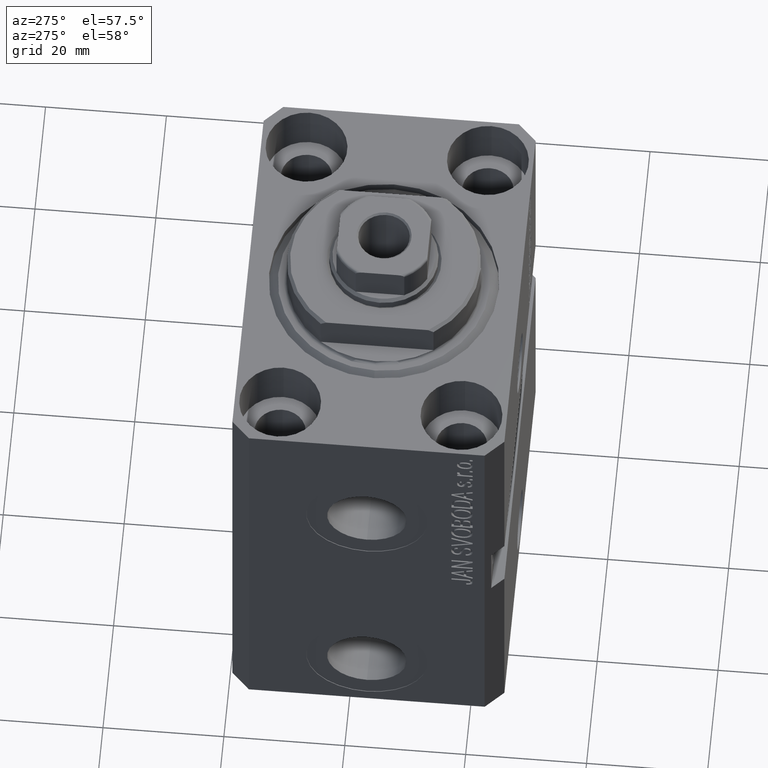
[diagram: clean part render]
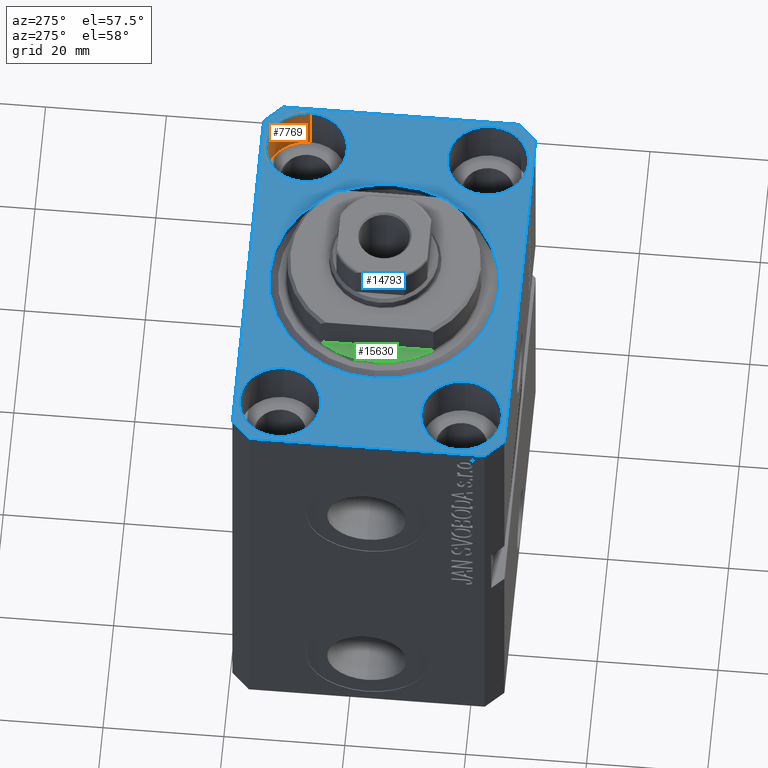
[diagram: same view with three faces highlighted in distinct colors, each labeled with its STEP entity id]
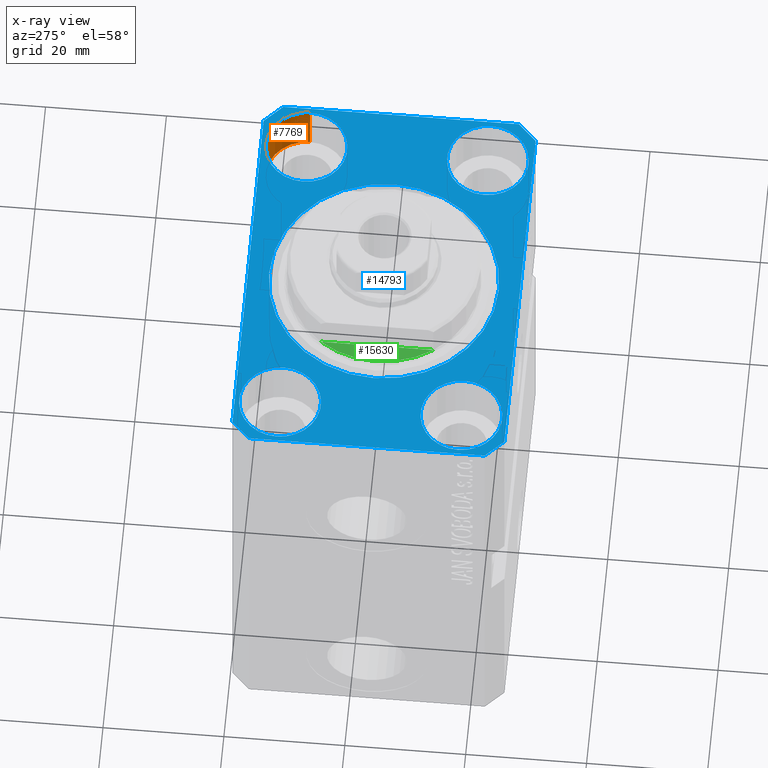
[diagram: x-ray of the same camera — body ghosted, the three highlighted faces saturated]
A machine part, auxiliary view with three faces highlighted in distinct colors.
The next image is the same camera in x-ray (body ghosted, the three faces saturated) — at least one of them is partly hidden behind the body in this view.
Their STEP definitions:

[orange] entity #7769 — the highlighted cylindrical surface (partial cylindrical patch) has radius 6.75 mm, axis along (0, 0, 1).
#1448 = CARTESIAN_POINT ( 'NONE',  ( 24.99999999999999645, 15.00000000000000888, -9.000000000000000000 ) ) ;
#1589 = CARTESIAN_POINT ( 'NONE',  ( 24.99999999999999645, 15.00000000000000888, 0.000000000000000000 ) ) ;
#5702 = CYLINDRICAL_SURFACE ( 'NONE', #31369, 6.749999999958452790 ) ;
#7471 = EDGE_CURVE ( 'NONE', #20193, #7764, #35274, .T. ) ;
#7764 = VERTEX_POINT ( 'NONE', #8868 ) ;
#7769 = ADVANCED_FACE ( 'NONE', ( #25702 ), #5702, .F. ) ;
#8868 = CARTESIAN_POINT ( 'NONE',  ( 31.74999999995845101, 15.00000000000000888, 0.000000000000000000 ) ) ;
#8992 = ORIENTED_EDGE ( 'NONE', *, *, #7471, .T. ) ;
#9295 = AXIS2_PLACEMENT_3D ( 'NONE', #35532, #11724, #28544 ) ;
#10465 = CARTESIAN_POINT ( 'NONE',  ( 18.25000000004154543, 15.00000000000000888, 0.000000000000000000 ) ) ;
#11724 = DIRECTION ( 'NONE',  ( 0.000000000000000000, 0.000000000000000000, 1.000000000000000000 ) ) ;
#12130 = CARTESIAN_POINT ( 'NONE',  ( 31.74999999995845101, 15.00000000000000888, -9.000000000000000000 ) ) ;
#14065 = CARTESIAN_POINT ( 'NONE',  ( 18.25000000004154543, 15.00000000000000888, -9.000000000000000000 ) ) ;
#14867 = VECTOR ( 'NONE', #32557, 1000.000000000000000 ) ;
#15160 = DIRECTION ( 'NONE',  ( -0.000000000000000000, -0.000000000000000000, 1.000000000000000000 ) ) ;
#15304 = DIRECTION ( 'NONE',  ( 0.000000000000000000, 0.000000000000000000, 1.000000000000000000 ) ) ;
#17212 = EDGE_CURVE ( 'NONE', #20193, #43143, #20058, .T. ) ;
#18714 = ORIENTED_EDGE ( 'NONE', *, *, #27948, .F. ) ;
#20058 = CIRCLE ( 'NONE', #9295, 6.749999999958452790 ) ;
#20193 = VERTEX_POINT ( 'NONE', #32986 ) ;
#21295 = AXIS2_PLACEMENT_3D ( 'NONE', #1589, #15304, #24738 ) ;
#24738 = DIRECTION ( 'NONE',  ( 1.000000000000000000, 0.000000000000000000, 0.000000000000000000 ) ) ;
#25702 = FACE_OUTER_BOUND ( 'NONE', #26108, .T. ) ;
#25903 = CARTESIAN_POINT ( 'NONE',  ( 18.25000000004154543, 15.00000000000000888, -9.000000000000000000 ) ) ;
#26108 = EDGE_LOOP ( 'NONE', ( #18714, #38473, #8992, #28765 ) ) ;
#27948 = EDGE_CURVE ( 'NONE', #43143, #35295, #42520, .T. ) ;
#28544 = DIRECTION ( 'NONE',  ( 1.000000000000000000, 0.000000000000000000, 0.000000000000000000 ) ) ;
#28765 = ORIENTED_EDGE ( 'NONE', *, *, #40222, .T. ) ;
#31369 = AXIS2_PLACEMENT_3D ( 'NONE', #1448, #15160, #39401 ) ;
#32035 = CIRCLE ( 'NONE', #21295, 6.749999999958452790 ) ;
#32557 = DIRECTION ( 'NONE',  ( -0.000000000000000000, -0.000000000000000000, 1.000000000000000000 ) ) ;
#32986 = CARTESIAN_POINT ( 'NONE',  ( 31.74999999995845101, 15.00000000000000888, -9.000000000000000000 ) ) ;
#35274 = LINE ( 'NONE', #12130, #14867 ) ;
#35295 = VERTEX_POINT ( 'NONE', #10465 ) ;
#35532 = CARTESIAN_POINT ( 'NONE',  ( 24.99999999999999645, 15.00000000000000888, -9.000000000000000000 ) ) ;
#36021 = DIRECTION ( 'NONE',  ( -0.000000000000000000, -0.000000000000000000, 1.000000000000000000 ) ) ;
#38473 = ORIENTED_EDGE ( 'NONE', *, *, #17212, .F. ) ;
#39401 = DIRECTION ( 'NONE',  ( 1.000000000000000000, 0.000000000000000000, 0.000000000000000000 ) ) ;
#40222 = EDGE_CURVE ( 'NONE', #7764, #35295, #32035, .T. ) ;
#41806 = VECTOR ( 'NONE', #36021, 1000.000000000000000 ) ;
#42520 = LINE ( 'NONE', #25903, #41806 ) ;
#43143 = VERTEX_POINT ( 'NONE', #14065 ) ;

[blue] entity #14793 — the highlighted planar face has unit normal (0, 0, 1).
#127 = CARTESIAN_POINT ( 'NONE',  ( -25.00000000000000355, 15.00000000000000000, 0.000000000000000000 ) ) ;
#128 = LINE ( 'NONE', #30682, #18479 ) ;
#613 = ORIENTED_EDGE ( 'NONE', *, *, #27193, .F. ) ;
#700 = VERTEX_POINT ( 'NONE', #14378 ) ;
#846 = ORIENTED_EDGE ( 'NONE', *, *, #14800, .F. ) ;
#990 = LINE ( 'NONE', #4369, #42326 ) ;
#1238 = ORIENTED_EDGE ( 'NONE', *, *, #2797, .T. ) ;
#1589 = CARTESIAN_POINT ( 'NONE',  ( 24.99999999999999645, 15.00000000000000888, 0.000000000000000000 ) ) ;
#1730 = EDGE_CURVE ( 'NONE', #25437, #42172, #38739, .T. ) ;
#2021 = VERTEX_POINT ( 'NONE', #10753 ) ;
#2712 = CARTESIAN_POINT ( 'NONE',  ( 29.49999999999707967, 22.49999999999951328, 0.000000000000000000 ) ) ;
#2761 = CIRCLE ( 'NONE', #40062, 19.00000000000000000 ) ;
#2797 = EDGE_CURVE ( 'NONE', #2021, #33019, #12402, .T. ) ;
#3010 = AXIS2_PLACEMENT_3D ( 'NONE', #37119, #6340, #16890 ) ;
#3330 = CIRCLE ( 'NONE', #20553, 6.749999999977465137 ) ;
#3973 = CIRCLE ( 'NONE', #14012, 6.750000000041541881 ) ;
#3984 = ORIENTED_EDGE ( 'NONE', *, *, #40787, .F. ) ;
#4119 = CARTESIAN_POINT ( 'NONE',  ( -31.75000000004154899, -15.00000000000000000, 0.000000000000000000 ) ) ;
#4369 = CARTESIAN_POINT ( 'NONE',  ( 29.49999999999650413, -22.49999999999949196, 0.000000000000000000 ) ) ;
#5301 = CARTESIAN_POINT ( 'NONE',  ( 29.49999999999707967, 22.49999999999951328, 0.000000000000000000 ) ) ;
#5484 = VERTEX_POINT ( 'NONE', #29532 ) ;
#5787 = DIRECTION ( 'NONE',  ( 1.000000000000000000, 0.000000000000000000, 0.000000000000000000 ) ) ;
#5942 = DIRECTION ( 'NONE',  ( 1.334402673828349134E-14, 1.000000000000000000, 0.000000000000000000 ) ) ;
#6243 = PLANE ( 'NONE',  #33591 ) ;
#6340 = DIRECTION ( 'NONE',  ( 0.000000000000000000, 0.000000000000000000, 1.000000000000000000 ) ) ;
#6364 = VECTOR ( 'NONE', #27121, 1000.000000000000000 ) ;
#6695 = LINE ( 'NONE', #44192, #6364 ) ;
#6812 = EDGE_LOOP ( 'NONE', ( #38732, #3984 ) ) ;
#6832 = DIRECTION ( 'NONE',  ( 0.000000000000000000, 0.000000000000000000, 1.000000000000000000 ) ) ;
#7224 = VECTOR ( 'NONE', #29507, 1000.000000000000000 ) ;
#7251 = DIRECTION ( 'NONE',  ( 1.000000000000000000, 0.000000000000000000, 0.000000000000000000 ) ) ;
#7574 = VERTEX_POINT ( 'NONE', #16382 ) ;
#7764 = VERTEX_POINT ( 'NONE', #8868 ) ;
#7922 = VECTOR ( 'NONE', #10594, 1000.000000000000114 ) ;
#8399 = ORIENTED_EDGE ( 'NONE', *, *, #9035, .T. ) ;
#8868 = CARTESIAN_POINT ( 'NONE',  ( 31.74999999995845101, 15.00000000000000888, 0.000000000000000000 ) ) ;
#9035 = EDGE_CURVE ( 'NONE', #21727, #42987, #128, .T. ) ;
#9187 = DIRECTION ( 'NONE',  ( 0.000000000000000000, 0.000000000000000000, 1.000000000000000000 ) ) ;
#9605 = EDGE_LOOP ( 'NONE', ( #28379, #19312 ) ) ;
#10077 = VECTOR ( 'NONE', #16435, 1000.000000000000000 ) ;
#10357 = VECTOR ( 'NONE', #5942, 1000.000000000000000 ) ;
#10433 = EDGE_CURVE ( 'NONE', #25409, #28212, #44354, .T. ) ;
#10465 = CARTESIAN_POINT ( 'NONE',  ( 18.25000000004154543, 15.00000000000000888, 0.000000000000000000 ) ) ;
#10574 = CARTESIAN_POINT ( 'NONE',  ( -29.49999999999650413, -22.49999999999949907, 0.000000000000000000 ) ) ;
#10594 = DIRECTION ( 'NONE',  ( 0.7071067811865474617, -0.7071067811865474617, 0.000000000000000000 ) ) ;
#10753 = CARTESIAN_POINT ( 'NONE',  ( -32.49999999999650413, -19.49999999999949907, 0.000000000000000000 ) ) ;
#11312 = VERTEX_POINT ( 'NONE', #4119 ) ;
#12402 = LINE ( 'NONE', #40467, #7922 ) ;
#12538 = CARTESIAN_POINT ( 'NONE',  ( -29.49999999999650413, -22.49999999999949907, 0.000000000000000000 ) ) ;
#12657 = DIRECTION ( 'NONE',  ( 0.000000000000000000, 0.000000000000000000, 1.000000000000000000 ) ) ;
#14012 = AXIS2_PLACEMENT_3D ( 'NONE', #35927, #15697, #43096 ) ;
#14378 = CARTESIAN_POINT ( 'NONE',  ( 32.49999999999702993, 19.49999999999945999, 0.000000000000000000 ) ) ;
#14793 = ADVANCED_FACE ( 'NONE', ( #33425, #29387, #19728, #33205, #43095, #23312 ), #6243, .T. ) ;
#14800 = EDGE_CURVE ( 'NONE', #40339, #7574, #2761, .T. ) ;
#14900 = EDGE_CURVE ( 'NONE', #700, #37820, #6695, .T. ) ;
#15304 = DIRECTION ( 'NONE',  ( 0.000000000000000000, 0.000000000000000000, 1.000000000000000000 ) ) ;
#15522 = CARTESIAN_POINT ( 'NONE',  ( 19.00000000000000000, 0.000000000000000000, 0.000000000000000000 ) ) ;
#15581 = ORIENTED_EDGE ( 'NONE', *, *, #44150, .T. ) ;
#15697 = DIRECTION ( 'NONE',  ( 0.000000000000000000, 0.000000000000000000, 1.000000000000000000 ) ) ;
#15921 = DIRECTION ( 'NONE',  ( 1.000000000000000000, 0.000000000000000000, 0.000000000000000000 ) ) ;
#15987 = LINE ( 'NONE', #2712, #10077 ) ;
#16043 = LINE ( 'NONE', #33555, #7224 ) ;
#16382 = CARTESIAN_POINT ( 'NONE',  ( -19.00000000000000000, 2.326828918379970970E-15, 0.000000000000000000 ) ) ;
#16428 = VERTEX_POINT ( 'NONE', #41165 ) ;
#16435 = DIRECTION ( 'NONE',  ( -1.000000000000000000, -2.352167425053553784E-16, 0.000000000000000000 ) ) ;
#16578 = LINE ( 'NONE', #12538, #37175 ) ;
#16890 = DIRECTION ( 'NONE',  ( 1.000000000000000000, 0.000000000000000000, 0.000000000000000000 ) ) ;
#17332 = ORIENTED_EDGE ( 'NONE', *, *, #1730, .F. ) ;
#17670 = DIRECTION ( 'NONE',  ( 1.000000000000000000, 0.000000000000000000, 0.000000000000000000 ) ) ;
#17770 = EDGE_LOOP ( 'NONE', ( #18972, #613 ) ) ;
#17859 = DIRECTION ( 'NONE',  ( 0.7071067811865483499, 0.7071067811865466846, 0.000000000000000000 ) ) ;
#18479 = VECTOR ( 'NONE', #37443, 1000.000000000000114 ) ;
#18508 = AXIS2_PLACEMENT_3D ( 'NONE', #20817, #44406, #17670 ) ;
#18567 = EDGE_CURVE ( 'NONE', #37820, #21727, #15987, .T. ) ;
#18808 = CIRCLE ( 'NONE', #3010, 6.749999999958452790 ) ;
#18972 = ORIENTED_EDGE ( 'NONE', *, *, #37487, .F. ) ;
#19261 = EDGE_LOOP ( 'NONE', ( #17332, #26613 ) ) ;
#19290 = DIRECTION ( 'NONE',  ( 1.000000000000000000, 0.000000000000000000, -0.000000000000000000 ) ) ;
#19312 = ORIENTED_EDGE ( 'NONE', *, *, #24283, .F. ) ;
#19352 = EDGE_CURVE ( 'NONE', #28889, #16428, #990, .T. ) ;
#19476 = CIRCLE ( 'NONE', #30208, 6.750000000022533087 ) ;
#19728 = FACE_BOUND ( 'NONE', #9605, .T. ) ;
#19949 = CARTESIAN_POINT ( 'NONE',  ( 0.000000000000000000, 0.000000000000000000, 0.000000000000000000 ) ) ;
#20553 = AXIS2_PLACEMENT_3D ( 'NONE', #30160, #12657, #33090 ) ;
#20817 = CARTESIAN_POINT ( 'NONE',  ( 0.000000000000000000, 0.000000000000000000, 0.000000000000000000 ) ) ;
#21295 = AXIS2_PLACEMENT_3D ( 'NONE', #1589, #15304, #24738 ) ;
#21463 = EDGE_CURVE ( 'NONE', #42987, #2021, #16043, .T. ) ;
#21727 = VERTEX_POINT ( 'NONE', #32166 ) ;
#22636 = CARTESIAN_POINT ( 'NONE',  ( -25.00000000000000355, -15.00000000000000000, 0.000000000000000000 ) ) ;
#22753 = EDGE_CURVE ( 'NONE', #42172, #25437, #19476, .T. ) ;
#22867 = ORIENTED_EDGE ( 'NONE', *, *, #18567, .T. ) ;
#23235 = LINE ( 'NONE', #37615, #10357 ) ;
#23239 = ORIENTED_EDGE ( 'NONE', *, *, #21463, .T. ) ;
#23312 = FACE_OUTER_BOUND ( 'NONE', #43352, .T. ) ;
#23332 = ORIENTED_EDGE ( 'NONE', *, *, #19352, .T. ) ;
#23559 = CARTESIAN_POINT ( 'NONE',  ( -31.75000000002253842, 15.00000000000000000, 0.000000000000000000 ) ) ;
#24283 = EDGE_CURVE ( 'NONE', #35295, #7764, #18808, .T. ) ;
#24738 = DIRECTION ( 'NONE',  ( 1.000000000000000000, 0.000000000000000000, 0.000000000000000000 ) ) ;
#25409 = VERTEX_POINT ( 'NONE', #27905 ) ;
#25437 = VERTEX_POINT ( 'NONE', #41833 ) ;
#25821 = AXIS2_PLACEMENT_3D ( 'NONE', #28789, #42491, #7251 ) ;
#26241 = DIRECTION ( 'NONE',  ( 0.000000000000000000, 0.000000000000000000, 1.000000000000000000 ) ) ;
#26613 = ORIENTED_EDGE ( 'NONE', *, *, #22753, .F. ) ;
#26905 = CARTESIAN_POINT ( 'NONE',  ( 0.000000000000000000, 0.000000000000000000, 0.000000000000000000 ) ) ;
#27087 = DIRECTION ( 'NONE',  ( 1.000000000000000000, 0.000000000000000000, 0.000000000000000000 ) ) ;
#27121 = DIRECTION ( 'NONE',  ( -0.7071067811865352493, 0.7071067811865597852, 0.000000000000000000 ) ) ;
#27193 = EDGE_CURVE ( 'NONE', #11312, #5484, #36825, .T. ) ;
#27905 = CARTESIAN_POINT ( 'NONE',  ( 31.74999999997746869, -15.00000000000000000, 0.000000000000000000 ) ) ;
#28171 = AXIS2_PLACEMENT_3D ( 'NONE', #22636, #36346, #5787 ) ;
#28212 = VERTEX_POINT ( 'NONE', #35077 ) ;
#28379 = ORIENTED_EDGE ( 'NONE', *, *, #40222, .F. ) ;
#28789 = CARTESIAN_POINT ( 'NONE',  ( -25.00000000000000355, 15.00000000000000000, 0.000000000000000000 ) ) ;
#28889 = VERTEX_POINT ( 'NONE', #43862 ) ;
#29268 = CIRCLE ( 'NONE', #18508, 19.00000000000000000 ) ;
#29387 = FACE_BOUND ( 'NONE', #6812, .T. ) ;
#29507 = DIRECTION ( 'NONE',  ( 0.000000000000000000, -1.000000000000000000, 0.000000000000000000 ) ) ;
#29532 = CARTESIAN_POINT ( 'NONE',  ( -18.24999999995846167, -15.00000000000000000, 0.000000000000000000 ) ) ;
#30160 = CARTESIAN_POINT ( 'NONE',  ( 25.00000000000000355, -15.00000000000000000, 0.000000000000000000 ) ) ;
#30208 = AXIS2_PLACEMENT_3D ( 'NONE', #127, #30466, #27087 ) ;
#30466 = DIRECTION ( 'NONE',  ( 0.000000000000000000, 0.000000000000000000, 1.000000000000000000 ) ) ;
#30629 = DIRECTION ( 'NONE',  ( 1.000000000000000000, 0.000000000000000000, 0.000000000000000000 ) ) ;
#30682 = CARTESIAN_POINT ( 'NONE',  ( -29.49999999999650413, 22.49999999999949907, 0.000000000000000000 ) ) ;
#31030 = CARTESIAN_POINT ( 'NONE',  ( -32.49999999999650413, 19.49999999999949907, 0.000000000000000000 ) ) ;
#32035 = CIRCLE ( 'NONE', #21295, 6.749999999958452790 ) ;
#32166 = CARTESIAN_POINT ( 'NONE',  ( -29.49999999999650413, 22.49999999999949907, 0.000000000000000000 ) ) ;
#33019 = VERTEX_POINT ( 'NONE', #10574 ) ;
#33090 = DIRECTION ( 'NONE',  ( 1.000000000000000000, 0.000000000000000000, 0.000000000000000000 ) ) ;
#33205 = FACE_BOUND ( 'NONE', #19261, .T. ) ;
#33425 = FACE_BOUND ( 'NONE', #17770, .T. ) ;
#33555 = CARTESIAN_POINT ( 'NONE',  ( -32.49999999999650413, 19.49999999999949907, 0.000000000000000000 ) ) ;
#33591 = AXIS2_PLACEMENT_3D ( 'NONE', #19949, #9187, #19290 ) ;
#33649 = DIRECTION ( 'NONE',  ( 1.000000000000000000, 1.176083712526788232E-16, 0.000000000000000000 ) ) ;
#33728 = EDGE_CURVE ( 'NONE', #16428, #700, #23235, .T. ) ;
#35077 = CARTESIAN_POINT ( 'NONE',  ( 18.25000000002253842, -15.00000000000000000, 0.000000000000000000 ) ) ;
#35295 = VERTEX_POINT ( 'NONE', #10465 ) ;
#35482 = EDGE_LOOP ( 'NONE', ( #846, #42794 ) ) ;
#35745 = AXIS2_PLACEMENT_3D ( 'NONE', #36948, #6832, #30629 ) ;
#35927 = CARTESIAN_POINT ( 'NONE',  ( -25.00000000000000355, -15.00000000000000000, 0.000000000000000000 ) ) ;
#36346 = DIRECTION ( 'NONE',  ( 0.000000000000000000, 0.000000000000000000, 1.000000000000000000 ) ) ;
#36825 = CIRCLE ( 'NONE', #28171, 6.750000000041541881 ) ;
#36948 = CARTESIAN_POINT ( 'NONE',  ( 25.00000000000000355, -15.00000000000000000, 0.000000000000000000 ) ) ;
#37119 = CARTESIAN_POINT ( 'NONE',  ( 24.99999999999999645, 15.00000000000000888, 0.000000000000000000 ) ) ;
#37175 = VECTOR ( 'NONE', #33649, 1000.000000000000000 ) ;
#37443 = DIRECTION ( 'NONE',  ( -0.7071067811865474617, -0.7071067811865474617, 0.000000000000000000 ) ) ;
#37487 = EDGE_CURVE ( 'NONE', #5484, #11312, #3973, .T. ) ;
#37615 = CARTESIAN_POINT ( 'NONE',  ( 32.49999999999651124, -19.49999999999949196, 0.000000000000000000 ) ) ;
#37820 = VERTEX_POINT ( 'NONE', #5301 ) ;
#38153 = ORIENTED_EDGE ( 'NONE', *, *, #33728, .T. ) ;
#38732 = ORIENTED_EDGE ( 'NONE', *, *, #10433, .F. ) ;
#38739 = CIRCLE ( 'NONE', #25821, 6.750000000022533087 ) ;
#39248 = ORIENTED_EDGE ( 'NONE', *, *, #14900, .T. ) ;
#40062 = AXIS2_PLACEMENT_3D ( 'NONE', #26905, #26241, #15921 ) ;
#40222 = EDGE_CURVE ( 'NONE', #7764, #35295, #32035, .T. ) ;
#40339 = VERTEX_POINT ( 'NONE', #15522 ) ;
#40467 = CARTESIAN_POINT ( 'NONE',  ( -32.49999999999650413, -19.49999999999949907, 0.000000000000000000 ) ) ;
#40787 = EDGE_CURVE ( 'NONE', #28212, #25409, #3330, .T. ) ;
#41165 = CARTESIAN_POINT ( 'NONE',  ( 32.49999999999651124, -19.49999999999949196, 0.000000000000000000 ) ) ;
#41833 = CARTESIAN_POINT ( 'NONE',  ( -18.24999999997747224, 15.00000000000000000, 0.000000000000000000 ) ) ;
#42172 = VERTEX_POINT ( 'NONE', #23559 ) ;
#42326 = VECTOR ( 'NONE', #17859, 1000.000000000000000 ) ;
#42491 = DIRECTION ( 'NONE',  ( 0.000000000000000000, 0.000000000000000000, 1.000000000000000000 ) ) ;
#42794 = ORIENTED_EDGE ( 'NONE', *, *, #44300, .F. ) ;
#42987 = VERTEX_POINT ( 'NONE', #31030 ) ;
#43095 = FACE_BOUND ( 'NONE', #35482, .T. ) ;
#43096 = DIRECTION ( 'NONE',  ( 1.000000000000000000, 0.000000000000000000, 0.000000000000000000 ) ) ;
#43352 = EDGE_LOOP ( 'NONE', ( #22867, #8399, #23239, #1238, #15581, #23332, #38153, #39248 ) ) ;
#43862 = CARTESIAN_POINT ( 'NONE',  ( 29.49999999999650413, -22.49999999999949196, 0.000000000000000000 ) ) ;
#44150 = EDGE_CURVE ( 'NONE', #33019, #28889, #16578, .T. ) ;
#44192 = CARTESIAN_POINT ( 'NONE',  ( 32.49999999999702993, 19.49999999999945999, 0.000000000000000000 ) ) ;
#44300 = EDGE_CURVE ( 'NONE', #7574, #40339, #29268, .T. ) ;
#44354 = CIRCLE ( 'NONE', #35745, 6.749999999977465137 ) ;
#44406 = DIRECTION ( 'NONE',  ( 0.000000000000000000, 0.000000000000000000, 1.000000000000000000 ) ) ;

[green] entity #15630 — the highlighted planar face has unit normal (0, 0, 1).
#881 = FACE_OUTER_BOUND ( 'NONE', #22684, .T. ) ;
#1772 = ORIENTED_EDGE ( 'NONE', *, *, #5155, .F. ) ;
#3371 = PLANE ( 'NONE',  #27172 ) ;
#5155 = EDGE_CURVE ( 'NONE', #11179, #25965, #19498, .T. ) ;
#5953 = CARTESIAN_POINT ( 'NONE',  ( 0.000000000000000000, 0.000000000000000000, -0.4999999999999995559 ) ) ;
#7846 = AXIS2_PLACEMENT_3D ( 'NONE', #22680, #15956, #13685 ) ;
#9389 = ORIENTED_EDGE ( 'NONE', *, *, #34347, .T. ) ;
#11020 = DIRECTION ( 'NONE',  ( 0.000000000000000000, 0.000000000000000000, -1.000000000000000000 ) ) ;
#11074 = CIRCLE ( 'NONE', #37625, 16.00000000000000000 ) ;
#11179 = VERTEX_POINT ( 'NONE', #37626 ) ;
#12661 = EDGE_CURVE ( 'NONE', #14949, #25965, #23610, .T. ) ;
#13685 = DIRECTION ( 'NONE',  ( 1.000000000000000000, 0.000000000000000000, 0.000000000000000000 ) ) ;
#14598 = DIRECTION ( 'NONE',  ( 1.000000000000000000, 0.000000000000000000, 0.000000000000000000 ) ) ;
#14949 = VERTEX_POINT ( 'NONE', #44413 ) ;
#15630 = ADVANCED_FACE ( 'NONE', ( #881 ), #3371, .T. ) ;
#15956 = DIRECTION ( 'NONE',  ( -0.000000000000000000, -0.000000000000000000, -1.000000000000000000 ) ) ;
#19498 = LINE ( 'NONE', #21977, #30352 ) ;
#21977 = CARTESIAN_POINT ( 'NONE',  ( 13.00000000000000000, -43.08131845707602992, -0.4999999999999995559 ) ) ;
#22680 = CARTESIAN_POINT ( 'NONE',  ( 0.000000000000000000, 0.000000000000000000, -0.4999999999999995559 ) ) ;
#22684 = EDGE_LOOP ( 'NONE', ( #9389, #23947, #1772 ) ) ;
#23610 = CIRCLE ( 'NONE', #7846, 16.00000000000000000 ) ;
#23947 = ORIENTED_EDGE ( 'NONE', *, *, #12661, .T. ) ;
#25965 = VERTEX_POINT ( 'NONE', #36842 ) ;
#27172 = AXIS2_PLACEMENT_3D ( 'NONE', #28062, #11020, #14598 ) ;
#28062 = CARTESIAN_POINT ( 'NONE',  ( 0.000000000000000000, 0.000000000000000000, -0.4999999999999995559 ) ) ;
#30352 = VECTOR ( 'NONE', #33183, 1000.000000000000000 ) ;
#33183 = DIRECTION ( 'NONE',  ( 0.000000000000000000, -1.000000000000000000, -0.000000000000000000 ) ) ;
#34347 = EDGE_CURVE ( 'NONE', #11179, #14949, #11074, .T. ) ;
#36520 = DIRECTION ( 'NONE',  ( 1.000000000000000000, 5.329070518200751394E-15, 0.000000000000000000 ) ) ;
#36842 = CARTESIAN_POINT ( 'NONE',  ( 13.00000000000000000, -9.327379053088815652, -0.4999999999999995559 ) ) ;
#37625 = AXIS2_PLACEMENT_3D ( 'NONE', #5953, #43027, #36520 ) ;
#37626 = CARTESIAN_POINT ( 'NONE',  ( 13.00000000000000000, 9.327379053088815652, -0.4999999999999995559 ) ) ;
#43027 = DIRECTION ( 'NONE',  ( -0.000000000000000000, -0.000000000000000000, -1.000000000000000000 ) ) ;
#44413 = CARTESIAN_POINT ( 'NONE',  ( 16.00000000000000000, 0.000000000000000000, -0.4999999999999995559 ) ) ;